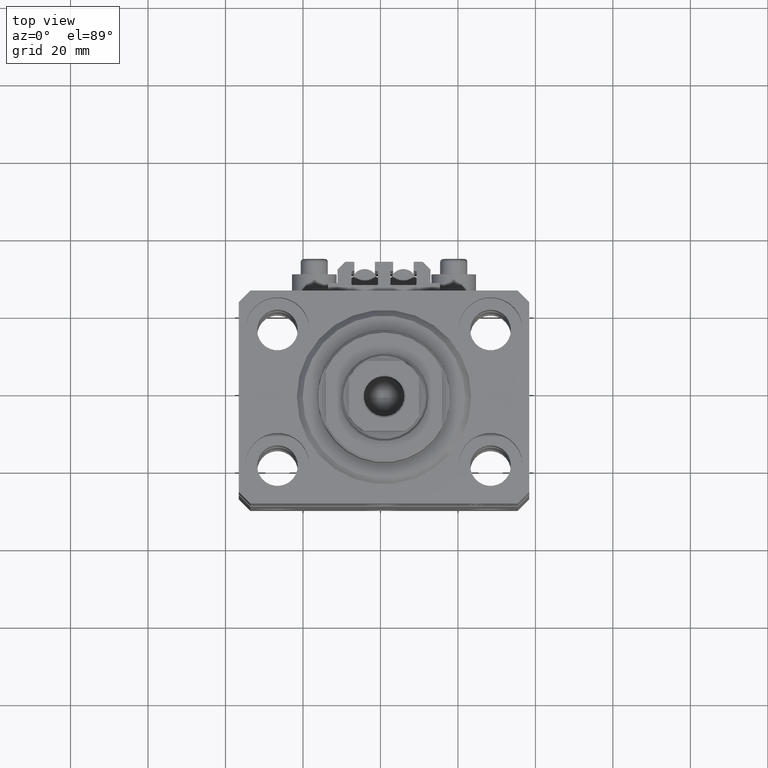
[diagram: clean part render]
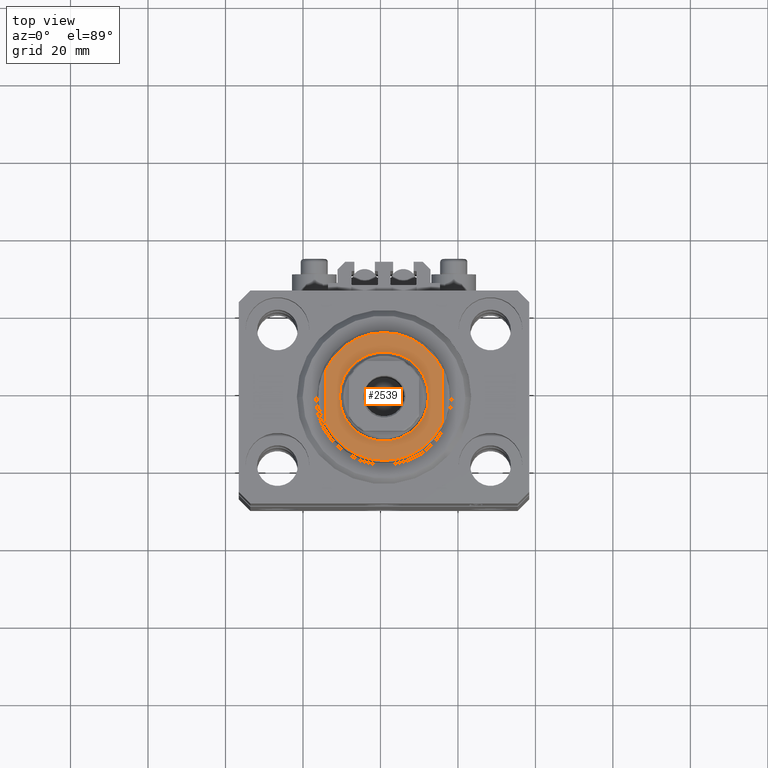
[diagram: same view with one face highlighted and labeled with its STEP entity id]
A machine part, top view. The second image highlights one B-rep face of the part: STEP entity #2539.
In plain terms, the highlighted planar face has unit normal (0, 0, 1).
Its self-contained STEP definition (entity closure, byte-faithful):
#361 = CARTESIAN_POINT ( 'NONE',  ( 0.000000000000000000, 0.000000000000000000, -8.000000000000000000 ) ) ;
#1647 = CARTESIAN_POINT ( 'NONE',  ( 0.000000000000000000, 0.000000000000000000, -8.000000000000000000 ) ) ;
#1898 = DIRECTION ( 'NONE',  ( -1.000000000000000000, 0.000000000000000000, 0.000000000000000000 ) ) ;
#2401 = AXIS2_PLACEMENT_3D ( 'NONE', #14122, #6812, #18019 ) ;
#2539 = ADVANCED_FACE ( 'NONE', ( #25091, #40644 ), #32164, .T. ) ;
#3379 = DIRECTION ( 'NONE',  ( -1.000000000000000000, 0.000000000000000000, -0.000000000000000000 ) ) ;
#3759 = DIRECTION ( 'NONE',  ( -1.000000000000000000, 0.000000000000000000, 0.000000000000000000 ) ) ;
#4841 = ORIENTED_EDGE ( 'NONE', *, *, #8227, .T. ) ;
#5571 = CIRCLE ( 'NONE', #17987, 11.50000000000000355 ) ;
#5831 = CARTESIAN_POINT ( 'NONE',  ( 14.99999999999999645, 6.873863542433765517, -8.000000000000000000 ) ) ;
#6138 = ORIENTED_EDGE ( 'NONE', *, *, #44624, .T. ) ;
#6740 = VERTEX_POINT ( 'NONE', #19464 ) ;
#6812 = DIRECTION ( 'NONE',  ( 0.000000000000000000, 0.000000000000000000, -1.000000000000000000 ) ) ;
#7670 = DIRECTION ( 'NONE',  ( 0.000000000000000000, 0.000000000000000000, -1.000000000000000000 ) ) ;
#8058 = EDGE_CURVE ( 'NONE', #27359, #17992, #41814, .T. ) ;
#8227 = EDGE_CURVE ( 'NONE', #6740, #17992, #32673, .T. ) ;
#9915 = ORIENTED_EDGE ( 'NONE', *, *, #11032, .T. ) ;
#10556 = CARTESIAN_POINT ( 'NONE',  ( 11.50000000000000355, 1.408343819019456570E-15, -8.000000000000000000 ) ) ;
#11032 = EDGE_CURVE ( 'NONE', #44645, #19477, #5571, .T. ) ;
#12245 = CARTESIAN_POINT ( 'NONE',  ( 15.00000000000000000, -42.42640687119285303, -8.000000000000000000 ) ) ;
#13341 = CIRCLE ( 'NONE', #2401, 16.50000000000000000 ) ;
#14122 = CARTESIAN_POINT ( 'NONE',  ( 0.000000000000000000, 0.000000000000000000, -8.000000000000000000 ) ) ;
#14681 = AXIS2_PLACEMENT_3D ( 'NONE', #25330, #47480, #3379 ) ;
#15545 = AXIS2_PLACEMENT_3D ( 'NONE', #361, #7670, #3759 ) ;
#15890 = LINE ( 'NONE', #12245, #31501 ) ;
#17987 = AXIS2_PLACEMENT_3D ( 'NONE', #1647, #35301, #1898 ) ;
#17992 = VERTEX_POINT ( 'NONE', #27693 ) ;
#18019 = DIRECTION ( 'NONE',  ( -1.000000000000000000, 0.000000000000000000, 0.000000000000000000 ) ) ;
#18839 = CARTESIAN_POINT ( 'NONE',  ( -11.50000000000000355, 0.000000000000000000, -8.000000000000000000 ) ) ;
#18979 = AXIS2_PLACEMENT_3D ( 'NONE', #26164, #33237, #40999 ) ;
#19297 = DIRECTION ( 'NONE',  ( 0.000000000000000000, -1.000000000000000000, -0.000000000000000000 ) ) ;
#19464 = CARTESIAN_POINT ( 'NONE',  ( 14.99999999999999645, -6.873863542433765517, -8.000000000000000000 ) ) ;
#19477 = VERTEX_POINT ( 'NONE', #10556 ) ;
#21268 = EDGE_LOOP ( 'NONE', ( #9915, #6138 ) ) ;
#23404 = ORIENTED_EDGE ( 'NONE', *, *, #34673, .T. ) ;
#23552 = CARTESIAN_POINT ( 'NONE',  ( -15.00000000000000000, -42.42640687119285303, -8.000000000000000000 ) ) ;
#25091 = FACE_BOUND ( 'NONE', #21268, .T. ) ;
#25330 = CARTESIAN_POINT ( 'NONE',  ( 0.000000000000000000, 0.000000000000000000, -8.000000000000000000 ) ) ;
#25956 = VERTEX_POINT ( 'NONE', #5831 ) ;
#26164 = CARTESIAN_POINT ( 'NONE',  ( 0.000000000000000000, 0.000000000000000000, -8.000000000000000000 ) ) ;
#26798 = CIRCLE ( 'NONE', #18979, 11.50000000000000355 ) ;
#27359 = VERTEX_POINT ( 'NONE', #30477 ) ;
#27693 = CARTESIAN_POINT ( 'NONE',  ( -14.99999999999999645, -6.873863542433765517, -8.000000000000000000 ) ) ;
#27733 = ORIENTED_EDGE ( 'NONE', *, *, #42856, .T. ) ;
#30477 = CARTESIAN_POINT ( 'NONE',  ( -14.99999999999999645, 6.873863542433765517, -8.000000000000000000 ) ) ;
#31501 = VECTOR ( 'NONE', #19297, 1000.000000000000000 ) ;
#31776 = EDGE_LOOP ( 'NONE', ( #23404, #27733, #4841, #33824 ) ) ;
#32164 = PLANE ( 'NONE',  #14681 ) ;
#32673 = CIRCLE ( 'NONE', #15545, 16.50000000000000000 ) ;
#33237 = DIRECTION ( 'NONE',  ( -0.000000000000000000, -0.000000000000000000, 1.000000000000000000 ) ) ;
#33824 = ORIENTED_EDGE ( 'NONE', *, *, #8058, .F. ) ;
#34673 = EDGE_CURVE ( 'NONE', #27359, #25956, #13341, .T. ) ;
#35301 = DIRECTION ( 'NONE',  ( -0.000000000000000000, -0.000000000000000000, 1.000000000000000000 ) ) ;
#38891 = VECTOR ( 'NONE', #45707, 1000.000000000000000 ) ;
#40644 = FACE_OUTER_BOUND ( 'NONE', #31776, .T. ) ;
#40999 = DIRECTION ( 'NONE',  ( -1.000000000000000000, 0.000000000000000000, 0.000000000000000000 ) ) ;
#41814 = LINE ( 'NONE', #23552, #38891 ) ;
#42856 = EDGE_CURVE ( 'NONE', #25956, #6740, #15890, .T. ) ;
#44624 = EDGE_CURVE ( 'NONE', #19477, #44645, #26798, .T. ) ;
#44645 = VERTEX_POINT ( 'NONE', #18839 ) ;
#45707 = DIRECTION ( 'NONE',  ( -0.000000000000000000, -1.000000000000000000, -0.000000000000000000 ) ) ;
#47480 = DIRECTION ( 'NONE',  ( 0.000000000000000000, 0.000000000000000000, -1.000000000000000000 ) ) ;